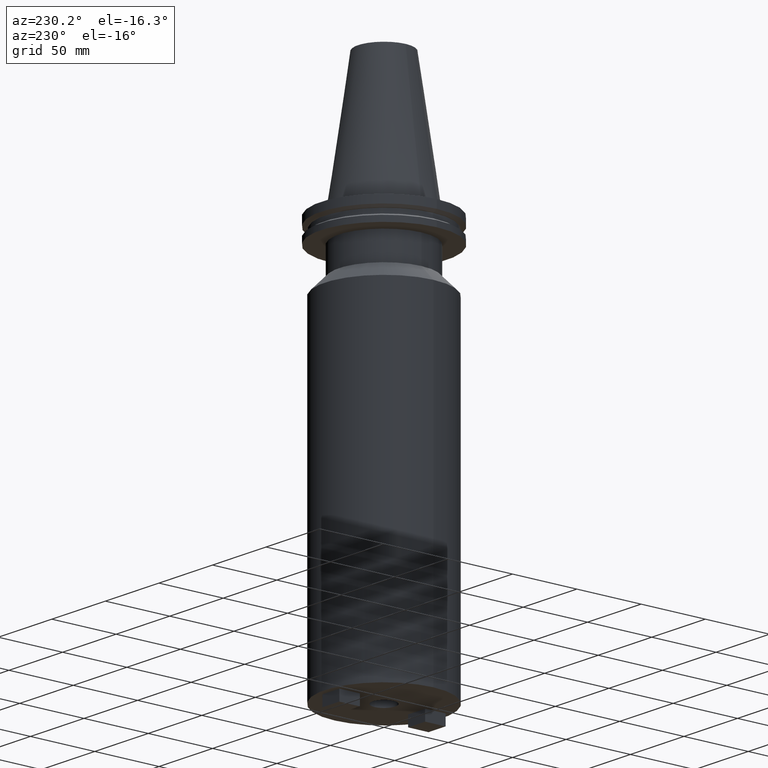
[diagram: clean part render]
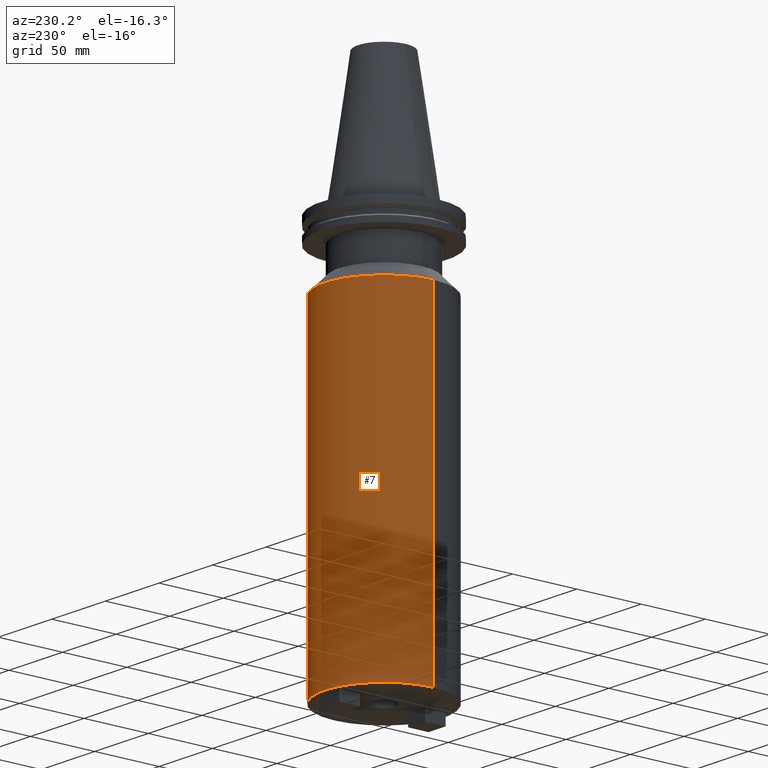
[diagram: same view with one face highlighted and labeled with its STEP entity id]
A machine part, auxiliary view. The second image highlights one B-rep face of the part: STEP entity #7.
In plain terms, the highlighted cylindrical surface (partial cylindrical patch) has radius 46.05 mm, axis along (-0, -0, 1).
Its self-contained STEP definition (entity closure, byte-faithful):
#7 = ADVANCED_FACE ( 'NONE', ( #333 ), #830, .T. ) ;
#123 = VERTEX_POINT ( 'NONE', #463 ) ;
#141 = AXIS2_PLACEMENT_3D ( 'NONE', #231, #755, #828 ) ;
#160 = DIRECTION ( 'NONE',  ( 1.000000000000000000, 0.000000000000000000, 0.000000000000000000 ) ) ;
#231 = CARTESIAN_POINT ( 'NONE',  ( 0.000000000000000000, 0.000000000000000000, -51.12499999999995026 ) ) ;
#279 = EDGE_CURVE ( 'NONE', #480, #841, #658, .T. ) ;
#321 = CARTESIAN_POINT ( 'NONE',  ( -46.04999999999999716, 5.639498510073560988E-15, 0.000000000000000000 ) ) ;
#326 = EDGE_CURVE ( 'NONE', #737, #841, #717, .T. ) ;
#328 = ORIENTED_EDGE ( 'NONE', *, *, #279, .T. ) ;
#333 = FACE_OUTER_BOUND ( 'NONE', #767, .T. ) ;
#358 = CARTESIAN_POINT ( 'NONE',  ( 46.04999999999999716, 5.639498510073560988E-15, -51.12499999999995026 ) ) ;
#396 = VECTOR ( 'NONE', #1087, 1000.000000000000000 ) ;
#398 = CIRCLE ( 'NONE', #565, 46.04999999999999716 ) ;
#432 = DIRECTION ( 'NONE',  ( -0.000000000000000000, -0.000000000000000000, 1.000000000000000000 ) ) ;
#447 = CARTESIAN_POINT ( 'NONE',  ( 46.04999999999999716, 0.000000000000000000, 0.000000000000000000 ) ) ;
#463 = CARTESIAN_POINT ( 'NONE',  ( 46.04999999999999716, 0.000000000000000000, -304.8000000000000682 ) ) ;
#480 = VERTEX_POINT ( 'NONE', #715 ) ;
#510 = CARTESIAN_POINT ( 'NONE',  ( 0.000000000000000000, 0.000000000000000000, 0.000000000000000000 ) ) ;
#565 = AXIS2_PLACEMENT_3D ( 'NONE', #954, #693, #851 ) ;
#658 = LINE ( 'NONE', #321, #396 ) ;
#693 = DIRECTION ( 'NONE',  ( -0.000000000000000000, -0.000000000000000000, 1.000000000000000000 ) ) ;
#715 = CARTESIAN_POINT ( 'NONE',  ( -46.04999999999999716, 5.639498510073560988E-15, -304.8000000000000682 ) ) ;
#717 = CIRCLE ( 'NONE', #141, 46.04999999999999716 ) ;
#720 = ORIENTED_EDGE ( 'NONE', *, *, #771, .T. ) ;
#723 = AXIS2_PLACEMENT_3D ( 'NONE', #510, #925, #160 ) ;
#737 = VERTEX_POINT ( 'NONE', #358 ) ;
#750 = EDGE_CURVE ( 'NONE', #123, #737, #760, .T. ) ;
#755 = DIRECTION ( 'NONE',  ( -0.000000000000000000, -0.000000000000000000, 1.000000000000000000 ) ) ;
#758 = VECTOR ( 'NONE', #432, 1000.000000000000000 ) ;
#759 = ORIENTED_EDGE ( 'NONE', *, *, #326, .F. ) ;
#760 = LINE ( 'NONE', #447, #758 ) ;
#767 = EDGE_LOOP ( 'NONE', ( #720, #328, #759, #981 ) ) ;
#771 = EDGE_CURVE ( 'NONE', #123, #480, #398, .T. ) ;
#828 = DIRECTION ( 'NONE',  ( 1.000000000000000000, 0.000000000000000000, 0.000000000000000000 ) ) ;
#830 = CYLINDRICAL_SURFACE ( 'NONE', #723, 46.04999999999999716 ) ;
#841 = VERTEX_POINT ( 'NONE', #947 ) ;
#851 = DIRECTION ( 'NONE',  ( 1.000000000000000000, 0.000000000000000000, 0.000000000000000000 ) ) ;
#925 = DIRECTION ( 'NONE',  ( -0.000000000000000000, -0.000000000000000000, 1.000000000000000000 ) ) ;
#947 = CARTESIAN_POINT ( 'NONE',  ( -46.04999999999999716, 0.000000000000000000, -51.12499999999995026 ) ) ;
#954 = CARTESIAN_POINT ( 'NONE',  ( 0.000000000000000000, 0.000000000000000000, -304.8000000000000682 ) ) ;
#981 = ORIENTED_EDGE ( 'NONE', *, *, #750, .F. ) ;
#1087 = DIRECTION ( 'NONE',  ( -0.000000000000000000, -0.000000000000000000, 1.000000000000000000 ) ) ;